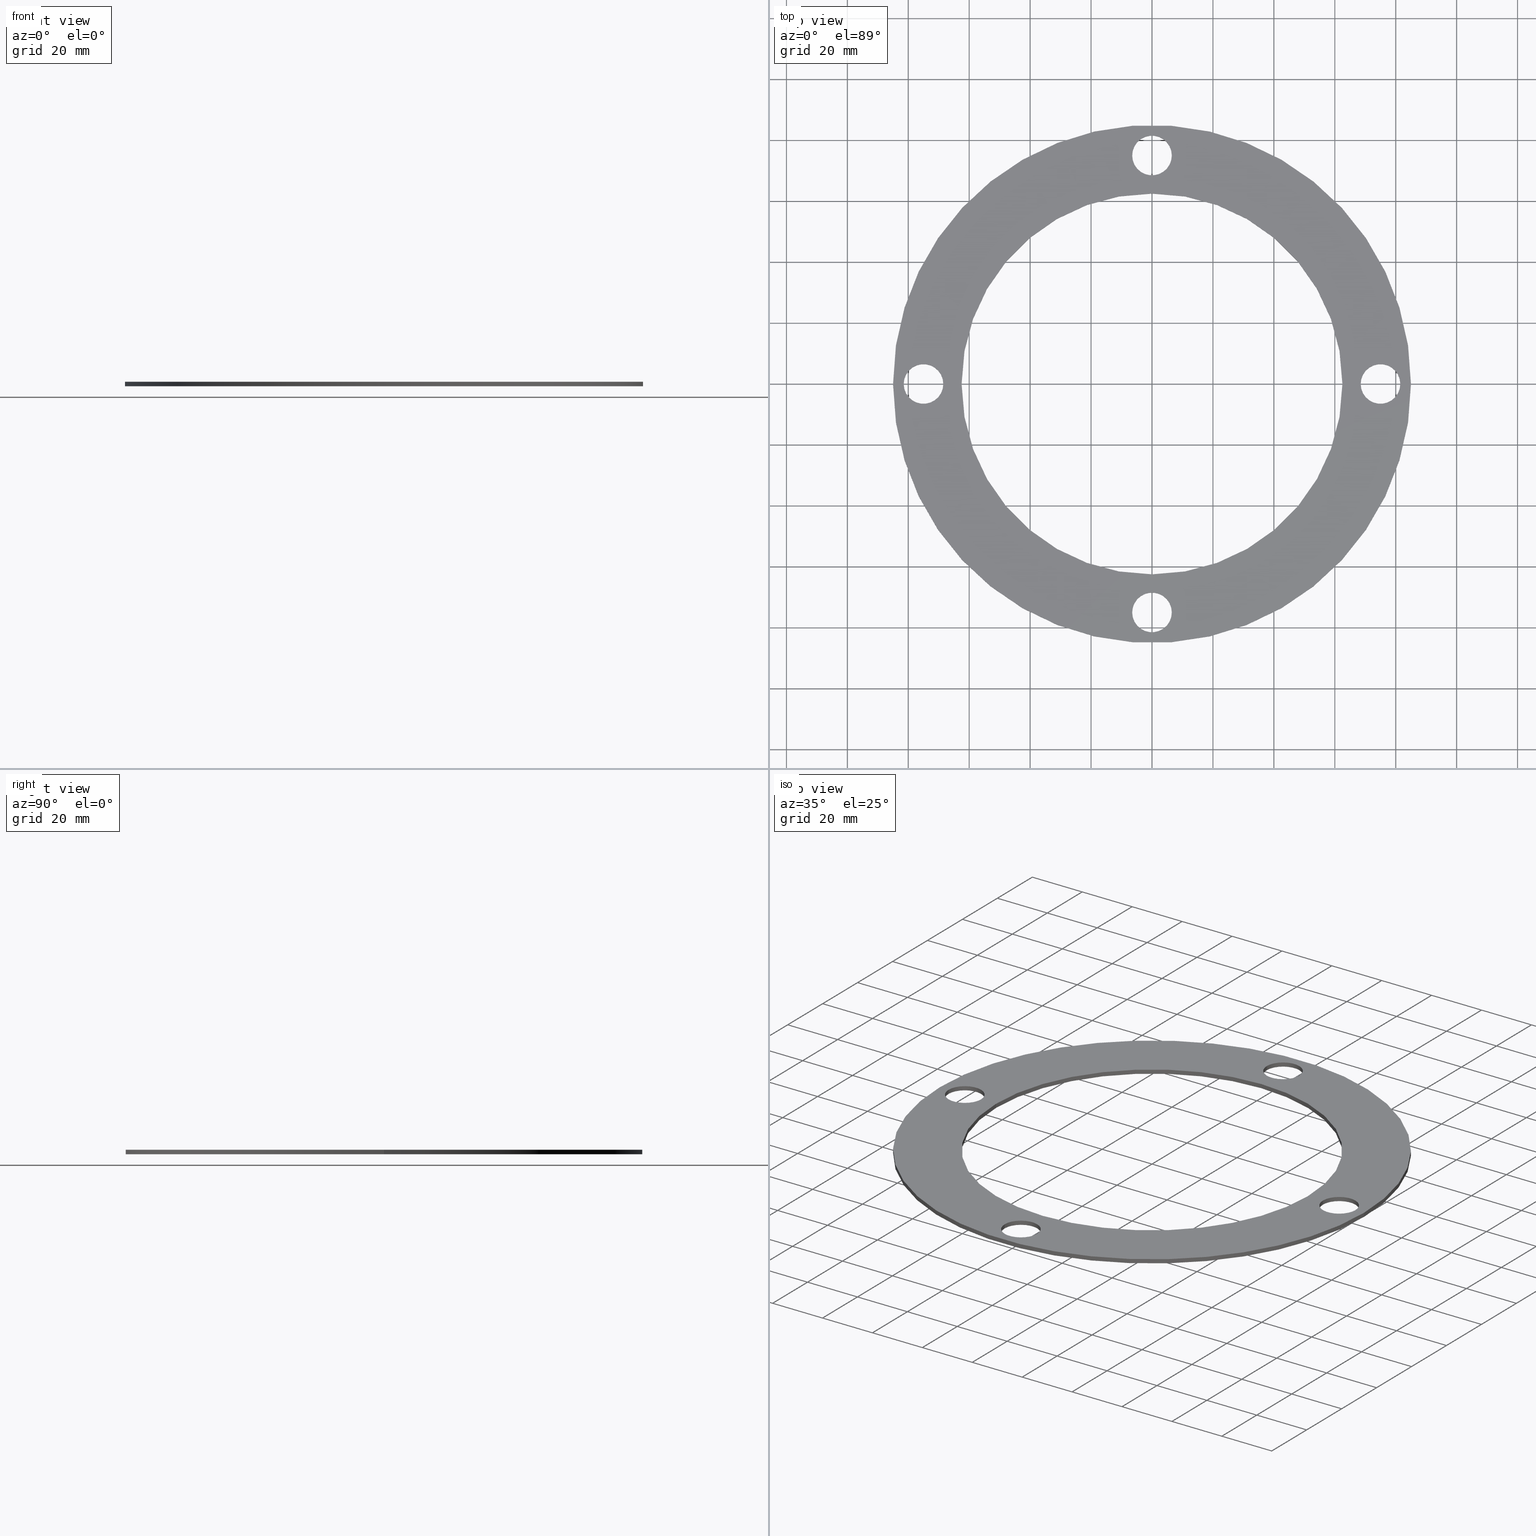
[diagram: canonical four-view strip — front | top / right | iso, engineering-drawing reading convention]
A machine part, canonical four-view strip (front | top / right | iso — engineering-drawing reading convention). The complete STEP part file that produces these views, byte-faithful:
ISO-10303-21;
HEADER;
FILE_DESCRIPTION (( 'STEP AP203' ),
    '1' );
FILE_NAME ('3996-60-30_REV_.step',
    '2026-02-21T22:20:02',
    ( '' ),
    ( '' ),
    'SwSTEP 2.0',
    'SolidWorks 2025',
    '' );
FILE_SCHEMA (( 'CONFIG_CONTROL_DESIGN' ));
ENDSEC;

DATA;
#1 = DIRECTION ( 'NONE',  ( 8.517425179052550560E-32, -6.044410759837815523E-32, 1.000000000000000000 ) ) ;
#2 = PERSON_AND_ORGANIZATION ( #96, #293 ) ;
#3 = EDGE_CURVE ( 'NONE', #453, #89, #226, .T. ) ;
#4 = LINE ( 'NONE', #297, #269 ) ;
#5 = PERSON_AND_ORGANIZATION_ROLE ( 'classification_officer' ) ;
#6 = ORIENTED_EDGE ( 'NONE', *, *, #10, .T. ) ;
#7 = DIRECTION ( 'NONE',  ( 8.517425179052550560E-32, -6.044410759837815523E-32, 1.000000000000000000 ) ) ;
#8 = SHAPE_DEFINITION_REPRESENTATION ( #276, #530 ) ;
#9 = DIRECTION ( 'NONE',  ( 8.517425179052550560E-32, -6.044410759837815523E-32, 1.000000000000000000 ) ) ;
#10 = EDGE_CURVE ( 'NONE', #313, #408, #533, .T. ) ;
#11 = ORIENTED_EDGE ( 'NONE', *, *, #148, .T. ) ;
#12 = CARTESIAN_POINT ( 'NONE',  ( 62.50000000000000000, 7.654042494671106110E-15, -5.323390736907844100E-30 ) ) ;
#13 = EDGE_CURVE ( 'NONE', #377, #356, #36, .T. ) ;
#14 = ORIENTED_EDGE ( 'NONE', *, *, #296, .F. ) ;
#15 = CARTESIAN_POINT ( 'NONE',  ( -84.99999999999998579, 1.479114197289397135E-28, 1.499999999999945821 ) ) ;
#16 = ORIENTED_EDGE ( 'NONE', *, *, #333, .F. ) ;
#17 = DIRECTION ( 'NONE',  ( 1.000000000000000000, 0.000000000000000000, 7.525872184246931317E-32 ) ) ;
#18 = ORIENTED_EDGE ( 'NONE', *, *, #314, .T. ) ;
#19 = PRODUCT_DEFINITION_FORMATION_WITH_SPECIFIED_SOURCE ( 'ANY', '', #288, .NOT_KNOWN. ) ;
#20 = EDGE_CURVE ( 'NONE', #316, #528, #194, .T. ) ;
#21 = CARTESIAN_POINT ( 'NONE',  ( 75.00000000000008527, 7.830047451731110384E-13, 0.000000000000000000 ) ) ;
#22 = ORIENTED_EDGE ( 'NONE', *, *, #336, .F. ) ;
#23 = CARTESIAN_POINT ( 'NONE',  ( -6.873544910604757304E-15, 75.00000000000000000, 0.000000000000000000 ) ) ;
#24 = DIRECTION ( 'NONE',  ( 1.000000000000000000, 0.000000000000000000, 0.000000000000000000 ) ) ;
#25 = APPROVAL_DATE_TIME ( #199, #208 ) ;
#26 = CIRCLE ( 'NONE', #99, 6.500000000000005329 ) ;
#27 = VECTOR ( 'NONE', #145, 1000.000000000000000 ) ;
#28 = CARTESIAN_POINT ( 'NONE',  ( -75.00000000000007105, -2.786460221246949539E-13, 0.000000000000000000 ) ) ;
#29 = DIRECTION ( 'NONE',  ( -1.000000000000000000, 0.000000000000000000, 0.000000000000000000 ) ) ;
#30 = APPROVAL ( #115, 'UNSPECIFIED' ) ;
#31 = EDGE_LOOP ( 'NONE', ( #98, #6, #509, #323 ) ) ;
#32 = CARTESIAN_POINT ( 'NONE',  ( -68.50000000000005684, -2.786460221246949539E-13, -5.536326366384160492E-31 ) ) ;
#33 = EDGE_CURVE ( 'NONE', #366, #392, #214, .T. ) ;
#34 = DIRECTION ( 'NONE',  ( 8.517425179052550560E-32, -6.044410759837815523E-32, 1.000000000000000000 ) ) ;
#35 = MECHANICAL_CONTEXT ( 'NONE', #71, 'mechanical' ) ;
#36 = CIRCLE ( 'NONE', #184, 62.50000000000000000 ) ;
#37 = AXIS2_PLACEMENT_3D ( 'NONE', #368, #417, #74 ) ;
#38 = ADVANCED_FACE ( 'NONE', ( #339 ), #251, .F. ) ;
#39 = CC_DESIGN_SECURITY_CLASSIFICATION ( #463, ( #19 ) ) ;
#40 = DIRECTION ( 'NONE',  ( 8.517425179052550560E-32, -6.044410759837815523E-32, 1.000000000000000000 ) ) ;
#41 = CARTESIAN_POINT ( 'NONE',  ( -1.972152263052529514E-28, 1.479114197289397135E-28, 1.499999999999945821 ) ) ;
#42 = CARTESIAN_POINT ( 'NONE',  ( 6.499999999999996447, 75.00000000000000000, 4.891816919760509243E-31 ) ) ;
#43 = ORIENTED_EDGE ( 'NONE', *, *, #3, .T. ) ;
#44 = DIRECTION ( 'NONE',  ( -1.000000000000000000, 0.000000000000000000, 0.000000000000000000 ) ) ;
#45 = ORIENTED_EDGE ( 'NONE', *, *, #342, .T. ) ;
#46 = AXIS2_PLACEMENT_3D ( 'NONE', #23, #331, #80 ) ;
#47 = AXIS2_PLACEMENT_3D ( 'NONE', #344, #502, #29 ) ;
#48 = LINE ( 'NONE', #129, #280 ) ;
#49 = ORIENTED_EDGE ( 'NONE', *, *, #123, .T. ) ;
#50 = CARTESIAN_POINT ( 'NONE',  ( -81.50000000000008527, -2.778500017052491628E-13, 1.499999999999945821 ) ) ;
#51 = EDGE_CURVE ( 'NONE', #481, #309, #484, .T. ) ;
#52 = DIRECTION ( 'NONE',  ( -8.517425179052550560E-32, 6.044410759837815523E-32, -1.000000000000000000 ) ) ;
#53 = EDGE_LOOP ( 'NONE', ( #171, #222, #139, #11 ) ) ;
#54 = AXIS2_PLACEMENT_3D ( 'NONE', #200, #116, #537 ) ;
#55 = CARTESIAN_POINT ( 'NONE',  ( -75.00000000000007105, -2.786460221246949539E-13, 0.000000000000000000 ) ) ;
#56 = LOCAL_TIME ( 9, 20, 2.000000000000000000, #508 ) ;
#57 = ORIENTED_EDGE ( 'NONE', *, *, #64, .F. ) ;
#58 = CARTESIAN_POINT ( 'NONE',  ( -62.50000000000000000, 1.479567528096384971E-28, 5.323390736907844100E-30 ) ) ;
#59 = ORIENTED_EDGE ( 'NONE', *, *, #113, .F. ) ;
#60 = CARTESIAN_POINT ( 'NONE',  ( -1.972152263052529514E-28, 1.479114197289397135E-28, 1.499999999999945821 ) ) ;
#61 = DIRECTION ( 'NONE',  ( -8.517425179052550560E-32, 6.044410759837815523E-32, -1.000000000000000000 ) ) ;
#62 = EDGE_LOOP ( 'NONE', ( #397, #492 ) ) ;
#63 = FACE_BOUND ( 'NONE', #62, .T. ) ;
#64 = EDGE_CURVE ( 'NONE', #207, #523, #524, .T. ) ;
#65 = LINE ( 'NONE', #396, #412 ) ;
#66 = ORIENTED_EDGE ( 'NONE', *, *, #219, .F. ) ;
#67 = DIRECTION ( 'NONE',  ( -7.525872184246934601E-32, -6.044410759837815523E-32, 1.000000000000000000 ) ) ;
#68 = CIRCLE ( 'NONE', #504, 6.500000000000003553 ) ;
#69 = CIRCLE ( 'NONE', #186, 6.500000000000003553 ) ;
#70 = DIRECTION ( 'NONE',  ( -1.000000000000000000, 0.000000000000000000, 0.000000000000000000 ) ) ;
#71 = APPLICATION_CONTEXT ( 'configuration controlled 3d designs of mechanical parts and assemblies' ) ;
#72 = DIRECTION ( 'NONE',  ( 1.067522139062649646E-14, -1.000000000000000000, 0.000000000000000000 ) ) ;
#73 =( LENGTH_UNIT ( ) NAMED_UNIT ( * ) SI_UNIT ( .MILLI., .METRE. ) );
#74 = DIRECTION ( 'NONE',  ( -1.000000000000000000, 0.000000000000000000, -7.525872184246933507E-32 ) ) ;
#75 = APPROVAL_STATUS ( 'not_yet_approved' ) ;
#76 = AXIS2_PLACEMENT_3D ( 'NONE', #451, #247, #70 ) ;
#77 = CIRCLE ( 'NONE', #341, 6.500000000000005329 ) ;
#78 = ORIENTED_EDGE ( 'NONE', *, *, #376, .T. ) ;
#79 = CALENDAR_DATE ( 2026, 22, 2 ) ;
#80 = DIRECTION ( 'NONE',  ( 1.000000000000000000, 0.000000000000000000, 7.525872184246933507E-32 ) ) ;
#81 = FACE_OUTER_BOUND ( 'NONE', #242, .T. ) ;
#82 = LINE ( 'NONE', #346, #439 ) ;
#83 = CYLINDRICAL_SURFACE ( 'NONE', #499, 62.50000000000000000 ) ;
#84 =( GEOMETRIC_REPRESENTATION_CONTEXT ( 3 ) GLOBAL_UNCERTAINTY_ASSIGNED_CONTEXT ( ( #521 ) ) GLOBAL_UNIT_ASSIGNED_CONTEXT ( ( #73, #375, #244 ) ) REPRESENTATION_CONTEXT ( 'NONE', 'WORKASPACE' ) );
#85 = DIRECTION ( 'NONE',  ( -8.517425179052550560E-32, 6.044410759837815523E-32, -1.000000000000000000 ) ) ;
#86 = ORIENTED_EDGE ( 'NONE', *, *, #526, .F. ) ;
#87 = EDGE_CURVE ( 'NONE', #408, #423, #160, .T. ) ;
#88 = DIRECTION ( 'NONE',  ( 8.517425179052550560E-32, -6.044410759837815523E-32, 1.000000000000000000 ) ) ;
#89 = VERTEX_POINT ( 'NONE', #201 ) ;
#90 = CARTESIAN_POINT ( 'NONE',  ( -68.50000000000007105, -2.786460221246949539E-13, 1.499999999999945821 ) ) ;
#91 = AXIS2_PLACEMENT_3D ( 'NONE', #403, #185, #363 ) ;
#92 = DIRECTION ( 'NONE',  ( -4.270088556250598741E-15, 1.000000000000000000, 0.000000000000000000 ) ) ;
#93 = EDGE_LOOP ( 'NONE', ( #493, #516 ) ) ;
#94 = DIRECTION ( 'NONE',  ( -1.000000000000000000, 0.000000000000000000, 0.000000000000000000 ) ) ;
#95 = ORIENTED_EDGE ( 'NONE', *, *, #285, .F. ) ;
#96 = PERSON ( 'UNSPECIFIED', 'UNSPECIFIED', 'UNSPECIFIED', ('UNSPECIFIED'), ('UNSPECIFIED'), ('UNSPECIFIED') ) ;
#97 = CYLINDRICAL_SURFACE ( 'NONE', #248, 6.500000000000005329 ) ;
#98 = ORIENTED_EDGE ( 'NONE', *, *, #166, .F. ) ;
#99 = AXIS2_PLACEMENT_3D ( 'NONE', #382, #1, #431 ) ;
#100 = FACE_BOUND ( 'NONE', #395, .T. ) ;
#101 = ORIENTED_EDGE ( 'NONE', *, *, #388, .T. ) ;
#102 = CARTESIAN_POINT ( 'NONE',  ( -1.972152263052529514E-28, 1.479114197289397135E-28, 1.499999999999945821 ) ) ;
#103 = ORIENTED_EDGE ( 'NONE', *, *, #219, .T. ) ;
#104 = FACE_OUTER_BOUND ( 'NONE', #471, .T. ) ;
#105 = DIRECTION ( 'NONE',  ( 8.517425179052550560E-32, -6.044410759837815523E-32, 1.000000000000000000 ) ) ;
#106 = ORIENTED_EDGE ( 'NONE', *, *, #342, .F. ) ;
#107 = CIRCLE ( 'NONE', #347, 62.50000000000000000 ) ;
#108 = EDGE_LOOP ( 'NONE', ( #131, #491 ) ) ;
#109 = VECTOR ( 'NONE', #85, 1000.000000000000000 ) ;
#110 = EDGE_CURVE ( 'NONE', #356, #377, #107, .T. ) ;
#111 = EDGE_LOOP ( 'NONE', ( #103, #282 ) ) ;
#112 = DATE_TIME_ROLE ( 'creation_date' ) ;
#113 = EDGE_CURVE ( 'NONE', #366, #177, #540, .T. ) ;
#114 = CARTESIAN_POINT ( 'NONE',  ( 6.534899330247067952E-17, -75.00000000000011369, 0.000000000000000000 ) ) ;
#115 = APPROVAL_STATUS ( 'not_yet_approved' ) ;
#116 = DIRECTION ( 'NONE',  ( 8.517425179052550560E-32, -6.044410759837815523E-32, 1.000000000000000000 ) ) ;
#117 = FACE_OUTER_BOUND ( 'NONE', #53, .T. ) ;
#118 = AXIS2_PLACEMENT_3D ( 'NONE', #259, #467, #511 ) ;
#119 = ORIENTED_EDGE ( 'NONE', *, *, #157, .T. ) ;
#120 = CARTESIAN_POINT ( 'NONE',  ( -1.972152263052529514E-28, 1.479114197289397135E-28, 1.499999999999945821 ) ) ;
#121 = CARTESIAN_POINT ( 'NONE',  ( 75.00000000000008527, 7.830047451731110384E-13, 0.000000000000000000 ) ) ;
#122 = AXIS2_PLACEMENT_3D ( 'NONE', #220, #173, #216 ) ;
#123 = EDGE_CURVE ( 'NONE', #523, #207, #245, .T. ) ;
#124 = VECTOR ( 'NONE', #443, 1000.000000000000000 ) ;
#125 = DIRECTION ( 'NONE',  ( 1.000000000000000000, 0.000000000000000000, 7.525872184246935696E-32 ) ) ;
#126 = DIRECTION ( 'NONE',  ( 8.517425179052550560E-32, -6.044410759837815523E-32, 1.000000000000000000 ) ) ;
#127 = APPROVAL_DATE_TIME ( #416, #30 ) ;
#128 = EDGE_LOOP ( 'NONE', ( #137, #43 ) ) ;
#129 = CARTESIAN_POINT ( 'NONE',  ( -6.500000000000009770, 75.00000000000000000, -4.891816919760509243E-31 ) ) ;
#130 = ADVANCED_FACE ( 'NONE', ( #455 ), #497, .T. ) ;
#131 = ORIENTED_EDGE ( 'NONE', *, *, #246, .F. ) ;
#132 = VECTOR ( 'NONE', #427, 1000.000000000000000 ) ;
#133 = APPROVAL_PERSON_ORGANIZATION ( #473, #299, #432 ) ;
#134 = CARTESIAN_POINT ( 'NONE',  ( 62.50000000000000000, 7.654042494671106110E-15, 1.499999999999945821 ) ) ;
#135 = ORIENTED_EDGE ( 'NONE', *, *, #466, .F. ) ;
#136 = DIRECTION ( 'NONE',  ( -8.517425179052550560E-32, 6.044410759837815523E-32, -1.000000000000000000 ) ) ;
#137 = ORIENTED_EDGE ( 'NONE', *, *, #466, .T. ) ;
#138 = FACE_OUTER_BOUND ( 'NONE', #352, .T. ) ;
#139 = ORIENTED_EDGE ( 'NONE', *, *, #381, .T. ) ;
#140 = FACE_BOUND ( 'NONE', #93, .T. ) ;
#141 = EDGE_CURVE ( 'NONE', #326, #319, #238, .T. ) ;
#142 = CIRCLE ( 'NONE', #290, 84.99999999999998579 ) ;
#143 = DIRECTION ( 'NONE',  ( 1.000000000000000000, 0.000000000000000000, 0.000000000000000000 ) ) ;
#144 = ORIENTED_EDGE ( 'NONE', *, *, #421, .T. ) ;
#145 = DIRECTION ( 'NONE',  ( 8.517425179052550560E-32, -6.044410759837815523E-32, 1.000000000000000000 ) ) ;
#146 = EDGE_LOOP ( 'NONE', ( #149, #18, #272, #429 ) ) ;
#147 = FACE_BOUND ( 'NONE', #108, .T. ) ;
#148 = EDGE_CURVE ( 'NONE', #309, #481, #68, .T. ) ;
#149 = ORIENTED_EDGE ( 'NONE', *, *, #20, .F. ) ;
#150 = CLOSED_SHELL ( 'NONE', ( #367, #38, #441, #304, #535, #130, #510, #517, #520, #406, #398, #457, #539, #475 ) ) ;
#151 = ORIENTED_EDGE ( 'NONE', *, *, #113, .T. ) ;
#152 = CC_DESIGN_PERSON_AND_ORGANIZATION_ASSIGNMENT ( #468, #221, ( #19 ) ) ;
#153 = DIRECTION ( 'NONE',  ( 8.517425179052550560E-32, -6.044410759837815523E-32, 1.000000000000000000 ) ) ;
#154 = PERSON_AND_ORGANIZATION ( #96, #293 ) ;
#155 = VERTEX_POINT ( 'NONE', #380 ) ;
#156 = DIRECTION ( 'NONE',  ( 8.517425179052550560E-32, -6.044410759837815523E-32, 1.000000000000000000 ) ) ;
#157 = EDGE_CURVE ( 'NONE', #453, #446, #472, .T. ) ;
#158 = CARTESIAN_POINT ( 'NONE',  ( 75.00000000000004263, 7.760658512692038100E-13, 1.500000000000056843 ) ) ;
#159 = PERSON_AND_ORGANIZATION_ROLE ( 'design_owner' ) ;
#160 = CIRCLE ( 'NONE', #474, 6.500000000000005329 ) ;
#161 = CIRCLE ( 'NONE', #197, 6.500000000000003553 ) ;
#162 = CARTESIAN_POINT ( 'NONE',  ( 6.534899330247067952E-17, -75.00000000000011369, 0.000000000000000000 ) ) ;
#163 = DIRECTION ( 'NONE',  ( 0.000000000000000000, 0.000000000000000000, 1.000000000000000000 ) ) ;
#164 = CARTESIAN_POINT ( 'NONE',  ( -6.873544910604757304E-15, 75.00000000000000000, 0.000000000000000000 ) ) ;
#165 = DIRECTION ( 'NONE',  ( 1.000000000000000000, 0.000000000000000000, 7.525872184246935696E-32 ) ) ;
#166 = EDGE_CURVE ( 'NONE', #313, #435, #462, .T. ) ;
#167 = AXIS2_PLACEMENT_3D ( 'NONE', #190, #9, #273 ) ;
#168 = DIRECTION ( 'NONE',  ( 8.517425179052550560E-32, -6.044410759837815523E-32, 1.000000000000000000 ) ) ;
#169 = ORIENTED_EDGE ( 'NONE', *, *, #490, .F. ) ;
#170 = DIRECTION ( 'NONE',  ( 8.517425179052550560E-32, -6.044410759837815523E-32, 1.000000000000000000 ) ) ;
#171 = ORIENTED_EDGE ( 'NONE', *, *, #388, .F. ) ;
#172 = CC_DESIGN_DATE_AND_TIME_ASSIGNMENT ( #512, #543, ( #463 ) ) ;
#173 = DIRECTION ( 'NONE',  ( 8.517425179052550560E-32, -6.044410759837815523E-32, 1.000000000000000000 ) ) ;
#174 = APPROVAL_DATE_TIME ( #217, #299 ) ;
#175 = CIRCLE ( 'NONE', #167, 84.99999999999998579 ) ;
#176 = FACE_OUTER_BOUND ( 'NONE', #234, .T. ) ;
#177 = VERTEX_POINT ( 'NONE', #253 ) ;
#178 = CARTESIAN_POINT ( 'NONE',  ( -75.00000000000007105, -2.786460221246949539E-13, 0.000000000000000000 ) ) ;
#179 = ORIENTED_EDGE ( 'NONE', *, *, #448, .T. ) ;
#180 = EDGE_CURVE ( 'NONE', #528, #319, #265, .T. ) ;
#181 = CARTESIAN_POINT ( 'NONE',  ( -6.873544910604757304E-15, 75.00000000000000000, 0.000000000000000000 ) ) ;
#182 = EDGE_LOOP ( 'NONE', ( #262, #86 ) ) ;
#183 = PLANE ( 'NONE',  #385 ) ;
#184 = AXIS2_PLACEMENT_3D ( 'NONE', #120, #153, #24 ) ;
#185 = DIRECTION ( 'NONE',  ( 8.517425179052550560E-32, -6.044410759837815523E-32, 1.000000000000000000 ) ) ;
#186 = AXIS2_PLACEMENT_3D ( 'NONE', #498, #156, #340 ) ;
#187 = ORIENTED_EDGE ( 'NONE', *, *, #526, .T. ) ;
#188 = CARTESIAN_POINT ( 'NONE',  ( 0.000000000000000000, 0.000000000000000000, 0.000000000000000000 ) ) ;
#189 = EDGE_CURVE ( 'NONE', #446, #155, #449, .T. ) ;
#190 = CARTESIAN_POINT ( 'NONE',  ( -1.972152263052529514E-28, 1.479114197289397135E-28, 1.499999999999945821 ) ) ;
#191 = ORIENTED_EDGE ( 'NONE', *, *, #314, .F. ) ;
#192 = FACE_OUTER_BOUND ( 'NONE', #249, .T. ) ;
#193 = CARTESIAN_POINT ( 'NONE',  ( 68.50000000000007105, 7.838007655925567790E-13, -4.891816919760509243E-31 ) ) ;
#194 = CIRCLE ( 'NONE', #310, 6.500000000000005329 ) ;
#195 = ORIENTED_EDGE ( 'NONE', *, *, #430, .F. ) ;
#196 = APPROVAL_ROLE ( '' ) ;
#197 = AXIS2_PLACEMENT_3D ( 'NONE', #440, #394, #489 ) ;
#198 = DIRECTION ( 'NONE',  ( 1.000000000000000000, 0.000000000000000000, 7.525872184246933507E-32 ) ) ;
#199 = DATE_AND_TIME ( #292, #264 ) ;
#200 = CARTESIAN_POINT ( 'NONE',  ( -1.972152263052529514E-28, 1.479114197289397135E-28, 1.499999999999945821 ) ) ;
#201 = CARTESIAN_POINT ( 'NONE',  ( -84.99999999999998579, 1.479567528096384971E-28, 1.499999999999945821 ) ) ;
#202 = PERSON_AND_ORGANIZATION_ROLE ( 'creator' ) ;
#203 = AXIS2_PLACEMENT_3D ( 'NONE', #505, #212, #125 ) ;
#204 = LOCAL_TIME ( 9, 20, 2.000000000000000000, #306 ) ;
#205 = CARTESIAN_POINT ( 'NONE',  ( -6.500000000000016875, 75.00000000000000000, 1.500000000000056843 ) ) ;
#206 = COORDINATED_UNIVERSAL_TIME_OFFSET ( 10, 0, .AHEAD. ) ;
#207 = VERTEX_POINT ( 'NONE', #503 ) ;
#208 = APPROVAL ( #75, 'UNSPECIFIED' ) ;
#209 = FACE_OUTER_BOUND ( 'NONE', #146, .T. ) ;
#210 = APPROVAL_STATUS ( 'not_yet_approved' ) ;
#211 = ORIENTED_EDGE ( 'NONE', *, *, #381, .F. ) ;
#212 = DIRECTION ( 'NONE',  ( 8.517425179052550560E-32, -6.044410759837815523E-32, 1.000000000000000000 ) ) ;
#213 = EDGE_LOOP ( 'NONE', ( #529, #119, #426, #360 ) ) ;
#214 = CIRCLE ( 'NONE', #46, 6.500000000000003553 ) ;
#215 = AXIS2_PLACEMENT_3D ( 'NONE', #365, #105, #143 ) ;
#216 = DIRECTION ( 'NONE',  ( 1.000000000000000000, 0.000000000000000000, 7.525872184246934601E-32 ) ) ;
#217 = DATE_AND_TIME ( #260, #204 ) ;
#218 = ORIENTED_EDGE ( 'NONE', *, *, #51, .T. ) ;
#219 = EDGE_CURVE ( 'NONE', #435, #313, #514, .T. ) ;
#220 = CARTESIAN_POINT ( 'NONE',  ( 0.000000000000000000, 0.000000000000000000, 0.000000000000000000 ) ) ;
#221 = PERSON_AND_ORGANIZATION_ROLE ( 'creator' ) ;
#222 = ORIENTED_EDGE ( 'NONE', *, *, #123, .F. ) ;
#223 = DIRECTION ( 'NONE',  ( 1.000000000000000000, 0.000000000000000000, 7.525872184246931317E-32 ) ) ;
#224 = CALENDAR_DATE ( 2026, 22, 2 ) ;
#225 = ORIENTED_EDGE ( 'NONE', *, *, #20, .T. ) ;
#226 = CIRCLE ( 'NONE', #54, 84.99999999999998579 ) ;
#227 = DIRECTION ( 'NONE',  ( 8.517425179052550560E-32, -6.044410759837815523E-32, 1.000000000000000000 ) ) ;
#228 = EDGE_LOOP ( 'NONE', ( #519, #258 ) ) ;
#229 = CARTESIAN_POINT ( 'NONE',  ( 84.99999999999998579, 1.040949779275264852E-14, -7.239811402194665174E-30 ) ) ;
#230 = CC_DESIGN_PERSON_AND_ORGANIZATION_ASSIGNMENT ( #371, #202, ( #424 ) ) ;
#231 = VERTEX_POINT ( 'NONE', #205 ) ;
#232 = DIRECTION ( 'NONE',  ( 1.000000000000000000, 0.000000000000000000, 7.525872184246934601E-32 ) ) ;
#233 = DIRECTION ( 'NONE',  ( 8.517425179052550560E-32, -6.044410759837815523E-32, 1.000000000000000000 ) ) ;
#234 = EDGE_LOOP ( 'NONE', ( #191, #169, #294, #374 ) ) ;
#235 = PLANE ( 'NONE',  #256 ) ;
#236 = MANIFOLD_SOLID_BREP ( 'CirPattern1', #150 ) ;
#237 = EDGE_CURVE ( 'NONE', #444, #479, #329, .T. ) ;
#238 = CIRCLE ( 'NONE', #456, 6.500000000000005329 ) ;
#239 = CARTESIAN_POINT ( 'NONE',  ( 81.50000000000008527, 7.830047451731110384E-13, -5.536326366384162243E-31 ) ) ;
#240 = AXIS2_PLACEMENT_3D ( 'NONE', #181, #359, #312 ) ;
#241 = ORIENTED_EDGE ( 'NONE', *, *, #10, .F. ) ;
#242 = EDGE_LOOP ( 'NONE', ( #500, #45, #442, #195 ) ) ;
#243 = ORIENTED_EDGE ( 'NONE', *, *, #33, .F. ) ;
#244 =( NAMED_UNIT ( * ) SI_UNIT ( $, .STERADIAN. ) SOLID_ANGLE_UNIT ( ) );
#245 = CIRCLE ( 'NONE', #321, 6.500000000000003553 ) ;
#246 = EDGE_CURVE ( 'NONE', #423, #408, #26, .T. ) ;
#247 = DIRECTION ( 'NONE',  ( -8.517425179052550560E-32, 6.044410759837815523E-32, -1.000000000000000000 ) ) ;
#248 = AXIS2_PLACEMENT_3D ( 'NONE', #55, #227, #17 ) ;
#249 = EDGE_LOOP ( 'NONE', ( #465, #135, #179, #437 ) ) ;
#250 = COORDINATED_UNIVERSAL_TIME_OFFSET ( 10, 0, .AHEAD. ) ;
#251 = CYLINDRICAL_SURFACE ( 'NONE', #263, 6.500000000000003553 ) ;
#252 = DIRECTION ( 'NONE',  ( -8.517425179052550560E-32, 6.044410759837815523E-32, -1.000000000000000000 ) ) ;
#253 = CARTESIAN_POINT ( 'NONE',  ( 6.499999999999989342, 75.00000000000000000, 1.500000000000056843 ) ) ;
#254 = PERSON_AND_ORGANIZATION ( #96, #293 ) ;
#255 = AXIS2_PLACEMENT_3D ( 'NONE', #300, #40, #302 ) ;
#256 = AXIS2_PLACEMENT_3D ( 'NONE', #188, #67, #405 ) ;
#257 = CARTESIAN_POINT ( 'NONE',  ( -68.50000000000005684, -2.786460221246949539E-13, 4.891816919760509243E-31 ) ) ;
#258 = ORIENTED_EDGE ( 'NONE', *, *, #13, .F. ) ;
#259 = CARTESIAN_POINT ( 'NONE',  ( -75.00000000000008527, -2.855849160286021823E-13, 1.499999999999945821 ) ) ;
#260 = CALENDAR_DATE ( 2026, 22, 2 ) ;
#261 = DIRECTION ( 'NONE',  ( 8.517425179052550560E-32, -6.044410759837815523E-32, 1.000000000000000000 ) ) ;
#262 = ORIENTED_EDGE ( 'NONE', *, *, #376, .F. ) ;
#263 = AXIS2_PLACEMENT_3D ( 'NONE', #162, #415, #198 ) ;
#264 = LOCAL_TIME ( 9, 20, 2.000000000000000000, #534 ) ;
#265 = LINE ( 'NONE', #257, #384 ) ;
#266 = CYLINDRICAL_SURFACE ( 'NONE', #330, 6.500000000000005329 ) ;
#267 = CARTESIAN_POINT ( 'NONE',  ( 6.500000000000003553, -75.00000000000011369, 4.891816919760509243E-31 ) ) ;
#268 = ORIENTED_EDGE ( 'NONE', *, *, #285, .T. ) ;
#269 = VECTOR ( 'NONE', #170, 1000.000000000000000 ) ;
#270 = CC_DESIGN_PERSON_AND_ORGANIZATION_ASSIGNMENT ( #254, #159, ( #288 ) ) ;
#271 = CARTESIAN_POINT ( 'NONE',  ( -6.500000000000009770, 75.00000000000000000, 5.536326366384160492E-31 ) ) ;
#272 = ORIENTED_EDGE ( 'NONE', *, *, #141, .T. ) ;
#273 = DIRECTION ( 'NONE',  ( 1.000000000000000000, 0.000000000000000000, 0.000000000000000000 ) ) ;
#274 = ORIENTED_EDGE ( 'NONE', *, *, #421, .F. ) ;
#275 = FACE_BOUND ( 'NONE', #404, .T. ) ;
#276 = PRODUCT_DEFINITION_SHAPE ( 'NONE', 'NONE',  #424 ) ;
#277 = LINE ( 'NONE', #267, #124 ) ;
#278 = ORIENTED_EDGE ( 'NONE', *, *, #325, .T. ) ;
#279 = PRODUCT_RELATED_PRODUCT_CATEGORY ( 'detail', '', ( #288 ) ) ;
#280 = VECTOR ( 'NONE', #386, 1000.000000000000000 ) ;
#281 = CC_DESIGN_APPROVAL ( #299, ( #463 ) ) ;
#282 = ORIENTED_EDGE ( 'NONE', *, *, #166, .T. ) ;
#283 = CARTESIAN_POINT ( 'NONE',  ( -2.075133271841921406E-14, -75.00000000000014211, 1.499999999999945821 ) ) ;
#284 = DIRECTION ( 'NONE',  ( 1.000000000000000000, 0.000000000000000000, 7.525872184246933507E-32 ) ) ;
#285 = EDGE_CURVE ( 'NONE', #392, #231, #48, .T. ) ;
#286 = DIRECTION ( 'NONE',  ( -1.000000000000000000, 0.000000000000000000, -7.525872184246933507E-32 ) ) ;
#287 = CALENDAR_DATE ( 2026, 22, 2 ) ;
#288 = PRODUCT ( '3996-60-30_REV_', '3996-60-30_REV_', '', ( #35 ) ) ;
#289 = DESIGN_CONTEXT ( 'detailed design', #407, 'design' ) ;
#290 = AXIS2_PLACEMENT_3D ( 'NONE', #544, #425, #165 ) ;
#291 = DIRECTION ( 'NONE',  ( 8.517425179052550560E-32, -6.044410759837815523E-32, 1.000000000000000000 ) ) ;
#292 = CALENDAR_DATE ( 2026, 22, 2 ) ;
#293 = ORGANIZATION ( 'UNSPECIFIED', 'UNSPECIFIED', '' ) ;
#294 = ORIENTED_EDGE ( 'NONE', *, *, #180, .T. ) ;
#295 = DIRECTION ( 'NONE',  ( 1.000000000000000000, 0.000000000000000000, 0.000000000000000000 ) ) ;
#296 = EDGE_CURVE ( 'NONE', #155, #446, #142, .T. ) ;
#297 = CARTESIAN_POINT ( 'NONE',  ( -81.50000000000007105, -2.778500017052491628E-13, -4.891816919760509243E-31 ) ) ;
#298 = CARTESIAN_POINT ( 'NONE',  ( 6.500000000000003553, -75.00000000000011369, -5.536326366384160492E-31 ) ) ;
#299 = APPROVAL ( #210, 'UNSPECIFIED' ) ;
#300 = CARTESIAN_POINT ( 'NONE',  ( 75.00000000000008527, 7.830047451731110384E-13, 0.000000000000000000 ) ) ;
#301 = CC_DESIGN_APPROVAL ( #30, ( #19 ) ) ;
#302 = DIRECTION ( 'NONE',  ( 1.067522139062649646E-14, -1.000000000000000000, 9.959465224912491216E-32 ) ) ;
#303 = ORIENTED_EDGE ( 'NONE', *, *, #141, .F. ) ;
#304 = ADVANCED_FACE ( 'NONE', ( #507 ), #305, .F. ) ;
#305 = CYLINDRICAL_SURFACE ( 'NONE', #476, 6.500000000000003553 ) ;
#306 = COORDINATED_UNIVERSAL_TIME_OFFSET ( 10, 0, .AHEAD. ) ;
#307 = CARTESIAN_POINT ( 'NONE',  ( 68.50000000000007105, 7.838007655925567790E-13, 5.536326366384161367E-31 ) ) ;
#308 = PERSON_AND_ORGANIZATION_ROLE ( 'design_supplier' ) ;
#309 = VERTEX_POINT ( 'NONE', #464 ) ;
#310 = AXIS2_PLACEMENT_3D ( 'NONE', #28, #334, #458 ) ;
#311 = CIRCLE ( 'NONE', #118, 6.500000000000005329 ) ;
#312 = DIRECTION ( 'NONE',  ( 1.000000000000000000, 0.000000000000000000, 7.525872184246933507E-32 ) ) ;
#313 = VERTEX_POINT ( 'NONE', #307 ) ;
#314 = EDGE_CURVE ( 'NONE', #316, #326, #4, .T. ) ;
#315 = CARTESIAN_POINT ( 'NONE',  ( -75.00000000000007105, -2.786460221246949539E-13, 0.000000000000000000 ) ) ;
#316 = VERTEX_POINT ( 'NONE', #470 ) ;
#317 = FACE_BOUND ( 'NONE', #228, .T. ) ;
#318 = CARTESIAN_POINT ( 'NONE',  ( -6.500000000000023093, -75.00000000000011369, 1.499999999999945821 ) ) ;
#319 = VERTEX_POINT ( 'NONE', #90 ) ;
#320 = FACE_BOUND ( 'NONE', #182, .T. ) ;
#321 = AXIS2_PLACEMENT_3D ( 'NONE', #114, #337, #286 ) ;
#322 = CARTESIAN_POINT ( 'NONE',  ( -6.500000000000003553, -75.00000000000011369, -4.891816919760509243E-31 ) ) ;
#323 = ORIENTED_EDGE ( 'NONE', *, *, #325, .F. ) ;
#324 = DIRECTION ( 'NONE',  ( 1.000000000000000000, 0.000000000000000000, 7.525872184246931317E-32 ) ) ;
#325 = EDGE_CURVE ( 'NONE', #435, #423, #82, .T. ) ;
#326 = VERTEX_POINT ( 'NONE', #50 ) ;
#327 = FACE_OUTER_BOUND ( 'NONE', #128, .T. ) ;
#328 = EDGE_LOOP ( 'NONE', ( #241, #66, #278, #433 ) ) ;
#329 = CIRCLE ( 'NONE', #122, 62.50000000000000000 ) ;
#330 = AXIS2_PLACEMENT_3D ( 'NONE', #315, #355, #324 ) ;
#331 = DIRECTION ( 'NONE',  ( 8.517425179052550560E-32, -6.044410759837815523E-32, 1.000000000000000000 ) ) ;
#332 = PERSON_AND_ORGANIZATION ( #96, #293 ) ;
#333 = EDGE_CURVE ( 'NONE', #319, #326, #311, .T. ) ;
#334 = DIRECTION ( 'NONE',  ( 8.517425179052550560E-32, -6.044410759837815523E-32, 1.000000000000000000 ) ) ;
#335 = APPLICATION_PROTOCOL_DEFINITION ( 'international standard', 'config_control_design', 1994, #71 ) ;
#336 = EDGE_CURVE ( 'NONE', #479, #444, #428, .T. ) ;
#337 = DIRECTION ( 'NONE',  ( 8.517425179052550560E-32, -6.044410759837815523E-32, 1.000000000000000000 ) ) ;
#338 = APPROVAL_ROLE ( '' ) ;
#339 = FACE_OUTER_BOUND ( 'NONE', #387, .T. ) ;
#340 = DIRECTION ( 'NONE',  ( 1.000000000000000000, 0.000000000000000000, 0.000000000000000000 ) ) ;
#341 = AXIS2_PLACEMENT_3D ( 'NONE', #178, #357, #518 ) ;
#342 = EDGE_CURVE ( 'NONE', #377, #479, #345, .T. ) ;
#343 = CARTESIAN_POINT ( 'NONE',  ( 6.499999999999996447, 75.00000000000000000, 4.891816919760509243E-31 ) ) ;
#344 = CARTESIAN_POINT ( 'NONE',  ( -1.972152263052529514E-28, 1.479114197289397135E-28, 1.499999999999945821 ) ) ;
#345 = LINE ( 'NONE', #379, #109 ) ;
#346 = CARTESIAN_POINT ( 'NONE',  ( 81.50000000000008527, 7.830047451731110384E-13, 4.891816919760509243E-31 ) ) ;
#347 = AXIS2_PLACEMENT_3D ( 'NONE', #409, #495, #536 ) ;
#348 = AXIS2_PLACEMENT_3D ( 'NONE', #102, #61, #94 ) ;
#349 = CARTESIAN_POINT ( 'NONE',  ( 84.99999999999998579, 1.040949779275264852E-14, 1.499999999999945821 ) ) ;
#350 = ORIENTED_EDGE ( 'NONE', *, *, #189, .F. ) ;
#351 = DIRECTION ( 'NONE',  ( 8.517425179052550560E-32, -6.044410759837815523E-32, 1.000000000000000000 ) ) ;
#352 = EDGE_LOOP ( 'NONE', ( #95, #243, #151, #78 ) ) ;
#353 = DIRECTION ( 'NONE',  ( 1.000000000000000000, 0.000000000000000000, 7.525872184246934601E-32 ) ) ;
#354 = LOCAL_TIME ( 9, 20, 2.000000000000000000, #206 ) ;
#355 = DIRECTION ( 'NONE',  ( 8.517425179052550560E-32, -6.044410759837815523E-32, 1.000000000000000000 ) ) ;
#356 = VERTEX_POINT ( 'NONE', #422 ) ;
#357 = DIRECTION ( 'NONE',  ( 8.517425179052550560E-32, -6.044410759837815523E-32, 1.000000000000000000 ) ) ;
#358 = EDGE_LOOP ( 'NONE', ( #274, #268, #187, #59 ) ) ;
#359 = DIRECTION ( 'NONE',  ( 8.517425179052550560E-32, -6.044410759837815523E-32, 1.000000000000000000 ) ) ;
#360 = ORIENTED_EDGE ( 'NONE', *, *, #448, .F. ) ;
#361 = FACE_BOUND ( 'NONE', #111, .T. ) ;
#362 = AXIS2_PLACEMENT_3D ( 'NONE', #496, #163, #295 ) ;
#363 = DIRECTION ( 'NONE',  ( 1.000000000000000000, 0.000000000000000000, 7.525872184246931317E-32 ) ) ;
#364 = EDGE_LOOP ( 'NONE', ( #106, #477, #459, #22 ) ) ;
#365 = CARTESIAN_POINT ( 'NONE',  ( -1.381243881451198568E-14, 75.00000000000000000, 1.500000000000056843 ) ) ;
#366 = VERTEX_POINT ( 'NONE', #42 ) ;
#367 = ADVANCED_FACE ( 'NONE', ( #209 ), #266, .F. ) ;
#368 = CARTESIAN_POINT ( 'NONE',  ( 6.534899330247067952E-17, -75.00000000000011369, 0.000000000000000000 ) ) ;
#369 = CIRCLE ( 'NONE', #215, 6.500000000000003553 ) ;
#370 = DIRECTION ( 'NONE',  ( -1.000000000000000000, 0.000000000000000000, 0.000000000000000000 ) ) ;
#371 = PERSON_AND_ORGANIZATION ( #96, #293 ) ;
#372 = DIRECTION ( 'NONE',  ( 8.517425179052550560E-32, -6.044410759837815523E-32, 1.000000000000000000 ) ) ;
#373 = DIRECTION ( 'NONE',  ( -1.000000000000000000, 0.000000000000000000, 0.000000000000000000 ) ) ;
#374 = ORIENTED_EDGE ( 'NONE', *, *, #333, .T. ) ;
#375 =( NAMED_UNIT ( * ) PLANE_ANGLE_UNIT ( ) SI_UNIT ( $, .RADIAN. ) );
#376 = EDGE_CURVE ( 'NONE', #177, #231, #369, .T. ) ;
#377 = VERTEX_POINT ( 'NONE', #134 ) ;
#378 = AXIS2_PLACEMENT_3D ( 'NONE', #21, #233, #223 ) ;
#379 = CARTESIAN_POINT ( 'NONE',  ( 62.50000000000000000, 7.654042494671106110E-15, 1.499999999999945821 ) ) ;
#380 = CARTESIAN_POINT ( 'NONE',  ( -84.99999999999998579, 1.479567528096384971E-28, 7.239811402194666575E-30 ) ) ;
#381 = EDGE_CURVE ( 'NONE', #523, #309, #277, .T. ) ;
#382 = CARTESIAN_POINT ( 'NONE',  ( 75.00000000000004263, 7.760658512692038100E-13, 1.500000000000056843 ) ) ;
#383 = SECURITY_CLASSIFICATION_LEVEL ( 'unclassified' ) ;
#384 = VECTOR ( 'NONE', #168, 1000.000000000000000 ) ;
#385 = AXIS2_PLACEMENT_3D ( 'NONE', #60, #447, #232 ) ;
#386 = DIRECTION ( 'NONE',  ( 8.517425179052550560E-32, -6.044410759837815523E-32, 1.000000000000000000 ) ) ;
#387 = EDGE_LOOP ( 'NONE', ( #57, #101, #218, #211 ) ) ;
#388 = EDGE_CURVE ( 'NONE', #207, #481, #399, .T. ) ;
#389 = CARTESIAN_POINT ( 'NONE',  ( 0.000000000000000000, 0.000000000000000000, 0.000000000000000000 ) ) ;
#390 = CC_DESIGN_PERSON_AND_ORGANIZATION_ASSIGNMENT ( #2, #5, ( #463 ) ) ;
#391 = CYLINDRICAL_SURFACE ( 'NONE', #91, 6.500000000000005329 ) ;
#392 = VERTEX_POINT ( 'NONE', #271 ) ;
#393 = APPROVAL_PERSON_ORGANIZATION ( #332, #208, #196 ) ;
#394 = DIRECTION ( 'NONE',  ( 8.517425179052550560E-32, -6.044410759837815523E-32, 1.000000000000000000 ) ) ;
#395 = EDGE_LOOP ( 'NONE', ( #16, #303 ) ) ;
#396 = CARTESIAN_POINT ( 'NONE',  ( -62.50000000000000000, 1.479114197289397135E-28, 1.499999999999945821 ) ) ;
#397 = ORIENTED_EDGE ( 'NONE', *, *, #237, .T. ) ;
#398 = ADVANCED_FACE ( 'NONE', ( #138 ), #486, .F. ) ;
#399 = LINE ( 'NONE', #322, #27 ) ;
#400 = EDGE_LOOP ( 'NONE', ( #49, #483 ) ) ;
#401 = FACE_BOUND ( 'NONE', #400, .T. ) ;
#402 = CC_DESIGN_APPROVAL ( #208, ( #424 ) ) ;
#403 = CARTESIAN_POINT ( 'NONE',  ( 75.00000000000008527, 7.830047451731110384E-13, 0.000000000000000000 ) ) ;
#404 = EDGE_LOOP ( 'NONE', ( #487, #225 ) ) ;
#405 = DIRECTION ( 'NONE',  ( 1.000000000000000000, 0.000000000000000000, 7.525872184246934601E-32 ) ) ;
#406 = ADVANCED_FACE ( 'NONE', ( #522 ), #478, .F. ) ;
#407 = APPLICATION_CONTEXT ( 'configuration controlled 3d designs of mechanical parts and assemblies' ) ;
#408 = VERTEX_POINT ( 'NONE', #527 ) ;
#409 = CARTESIAN_POINT ( 'NONE',  ( -1.972152263052529514E-28, 1.479114197289397135E-28, 1.499999999999945821 ) ) ;
#410 = APPLICATION_PROTOCOL_DEFINITION ( 'international standard', 'config_control_design', 1994, #407 ) ;
#411 = VECTOR ( 'NONE', #291, 1000.000000000000000 ) ;
#412 = VECTOR ( 'NONE', #52, 1000.000000000000000 ) ;
#413 = CARTESIAN_POINT ( 'NONE',  ( -75.00000000000008527, -2.855849160286021823E-13, 1.499999999999945821 ) ) ;
#414 = CYLINDRICAL_SURFACE ( 'NONE', #47, 84.99999999999998579 ) ;
#415 = DIRECTION ( 'NONE',  ( 8.517425179052550560E-32, -6.044410759837815523E-32, 1.000000000000000000 ) ) ;
#416 = DATE_AND_TIME ( #287, #532 ) ;
#417 = DIRECTION ( 'NONE',  ( 8.517425179052550560E-32, -6.044410759837815523E-32, 1.000000000000000000 ) ) ;
#418 = AXIS2_PLACEMENT_3D ( 'NONE', #121, #88, #542 ) ;
#419 = VECTOR ( 'NONE', #136, 1000.000000000000000 ) ;
#420 = CARTESIAN_POINT ( 'NONE',  ( -2.075133271841921406E-14, -75.00000000000014211, 1.499999999999945821 ) ) ;
#421 = EDGE_CURVE ( 'NONE', #392, #366, #161, .T. ) ;
#422 = CARTESIAN_POINT ( 'NONE',  ( -62.50000000000000000, 1.479567528096384971E-28, 1.499999999999945821 ) ) ;
#423 = VERTEX_POINT ( 'NONE', #445 ) ;
#424 = PRODUCT_DEFINITION ( 'UNKNOWN', '', #19, #289 ) ;
#425 = DIRECTION ( 'NONE',  ( 8.517425179052550560E-32, -6.044410759837815523E-32, 1.000000000000000000 ) ) ;
#426 = ORIENTED_EDGE ( 'NONE', *, *, #189, .T. ) ;
#427 = DIRECTION ( 'NONE',  ( -8.517425179052550560E-32, 6.044410759837815523E-32, -1.000000000000000000 ) ) ;
#428 = CIRCLE ( 'NONE', #525, 62.50000000000000000 ) ;
#429 = ORIENTED_EDGE ( 'NONE', *, *, #180, .F. ) ;
#430 = EDGE_CURVE ( 'NONE', #356, #444, #65, .T. ) ;
#431 = DIRECTION ( 'NONE',  ( 1.067522139062649646E-14, -1.000000000000000000, 0.000000000000000000 ) ) ;
#432 = APPROVAL_ROLE ( '' ) ;
#433 = ORIENTED_EDGE ( 'NONE', *, *, #246, .T. ) ;
#434 = CYLINDRICAL_SURFACE ( 'NONE', #378, 6.500000000000005329 ) ;
#435 = VERTEX_POINT ( 'NONE', #239 ) ;
#436 = LINE ( 'NONE', #15, #419 ) ;
#437 = ORIENTED_EDGE ( 'NONE', *, *, #296, .T. ) ;
#438 = VECTOR ( 'NONE', #501, 1000.000000000000000 ) ;
#439 = VECTOR ( 'NONE', #351, 1000.000000000000000 ) ;
#440 = CARTESIAN_POINT ( 'NONE',  ( -6.873544910604757304E-15, 75.00000000000000000, 0.000000000000000000 ) ) ;
#441 = ADVANCED_FACE ( 'NONE', ( #515 ), #391, .F. ) ;
#442 = ORIENTED_EDGE ( 'NONE', *, *, #237, .F. ) ;
#443 = DIRECTION ( 'NONE',  ( 8.517425179052550560E-32, -6.044410759837815523E-32, 1.000000000000000000 ) ) ;
#444 = VERTEX_POINT ( 'NONE', #58 ) ;
#445 = CARTESIAN_POINT ( 'NONE',  ( 81.50000000000004263, 7.830047451731110384E-13, 1.500000000000056843 ) ) ;
#446 = VERTEX_POINT ( 'NONE', #229 ) ;
#447 = DIRECTION ( 'NONE',  ( -7.525872184246934601E-32, -6.044410759837815523E-32, 1.000000000000000000 ) ) ;
#448 = EDGE_CURVE ( 'NONE', #89, #155, #436, .T. ) ;
#449 = CIRCLE ( 'NONE', #203, 84.99999999999998579 ) ;
#450 = AXIS2_PLACEMENT_3D ( 'NONE', #541, #460, #284 ) ;
#451 = CARTESIAN_POINT ( 'NONE',  ( -1.972152263052529514E-28, 1.479114197289397135E-28, 1.499999999999945821 ) ) ;
#452 = CC_DESIGN_DATE_AND_TIME_ASSIGNMENT ( #494, #112, ( #424 ) ) ;
#453 = VERTEX_POINT ( 'NONE', #480 ) ;
#454 = CYLINDRICAL_SURFACE ( 'NONE', #450, 6.500000000000003553 ) ;
#455 = FACE_OUTER_BOUND ( 'NONE', #213, .T. ) ;
#456 = AXIS2_PLACEMENT_3D ( 'NONE', #413, #261, #92 ) ;
#457 = ADVANCED_FACE ( 'NONE', ( #482 ), #434, .F. ) ;
#458 = DIRECTION ( 'NONE',  ( -4.270088556250598741E-15, 1.000000000000000000, -2.579542419263652926E-32 ) ) ;
#459 = ORIENTED_EDGE ( 'NONE', *, *, #430, .T. ) ;
#460 = DIRECTION ( 'NONE',  ( 8.517425179052550560E-32, -6.044410759837815523E-32, 1.000000000000000000 ) ) ;
#461 = DIRECTION ( 'NONE',  ( 8.517425179052550560E-32, -6.044410759837815523E-32, 1.000000000000000000 ) ) ;
#462 = CIRCLE ( 'NONE', #418, 6.500000000000005329 ) ;
#463 = SECURITY_CLASSIFICATION ( '', '', #383 ) ;
#464 = CARTESIAN_POINT ( 'NONE',  ( 6.499999999999982236, -75.00000000000011369, 1.499999999999945821 ) ) ;
#465 = ORIENTED_EDGE ( 'NONE', *, *, #157, .F. ) ;
#466 = EDGE_CURVE ( 'NONE', #89, #453, #175, .T. ) ;
#467 = DIRECTION ( 'NONE',  ( 8.517425179052550560E-32, -6.044410759837815523E-32, 1.000000000000000000 ) ) ;
#468 = PERSON_AND_ORGANIZATION ( #96, #293 ) ;
#469 = EDGE_LOOP ( 'NONE', ( #531, #144 ) ) ;
#470 = CARTESIAN_POINT ( 'NONE',  ( -81.50000000000007105, -2.778500017052491628E-13, 5.536326366384161367E-31 ) ) ;
#471 = EDGE_LOOP ( 'NONE', ( #14, #350 ) ) ;
#472 = LINE ( 'NONE', #349, #132 ) ;
#473 = PERSON_AND_ORGANIZATION ( #96, #293 ) ;
#474 = AXIS2_PLACEMENT_3D ( 'NONE', #158, #34, #72 ) ;
#475 = ADVANCED_FACE ( 'NONE', ( #176 ), #97, .F. ) ;
#476 = AXIS2_PLACEMENT_3D ( 'NONE', #164, #126, #513 ) ;
#477 = ORIENTED_EDGE ( 'NONE', *, *, #13, .T. ) ;
#478 = CYLINDRICAL_SURFACE ( 'NONE', #348, 62.50000000000000000 ) ;
#479 = VERTEX_POINT ( 'NONE', #12 ) ;
#480 = CARTESIAN_POINT ( 'NONE',  ( 84.99999999999998579, 1.040949779275264852E-14, 1.499999999999945821 ) ) ;
#481 = VERTEX_POINT ( 'NONE', #318 ) ;
#482 = FACE_OUTER_BOUND ( 'NONE', #328, .T. ) ;
#483 = ORIENTED_EDGE ( 'NONE', *, *, #64, .T. ) ;
#484 = CIRCLE ( 'NONE', #545, 6.500000000000003553 ) ;
#485 = CC_DESIGN_PERSON_AND_ORGANIZATION_ASSIGNMENT ( #506, #308, ( #19 ) ) ;
#486 = CYLINDRICAL_SURFACE ( 'NONE', #240, 6.500000000000003553 ) ;
#487 = ORIENTED_EDGE ( 'NONE', *, *, #490, .T. ) ;
#488 = FACE_BOUND ( 'NONE', #469, .T. ) ;
#489 = DIRECTION ( 'NONE',  ( 1.000000000000000000, 0.000000000000000000, 7.525872184246933507E-32 ) ) ;
#490 = EDGE_CURVE ( 'NONE', #528, #316, #77, .T. ) ;
#491 = ORIENTED_EDGE ( 'NONE', *, *, #87, .F. ) ;
#492 = ORIENTED_EDGE ( 'NONE', *, *, #336, .T. ) ;
#493 = ORIENTED_EDGE ( 'NONE', *, *, #148, .F. ) ;
#494 = DATE_AND_TIME ( #79, #354 ) ;
#495 = DIRECTION ( 'NONE',  ( 8.517425179052550560E-32, -6.044410759837815523E-32, 1.000000000000000000 ) ) ;
#496 = CARTESIAN_POINT ( 'NONE',  ( 0.000000000000000000, 0.000000000000000000, 0.000000000000000000 ) ) ;
#497 = CYLINDRICAL_SURFACE ( 'NONE', #76, 84.99999999999998579 ) ;
#498 = CARTESIAN_POINT ( 'NONE',  ( -1.381243881451198568E-14, 75.00000000000000000, 1.500000000000056843 ) ) ;
#499 = AXIS2_PLACEMENT_3D ( 'NONE', #41, #252, #373 ) ;
#500 = ORIENTED_EDGE ( 'NONE', *, *, #110, .T. ) ;
#501 = DIRECTION ( 'NONE',  ( 8.517425179052550560E-32, -6.044410759837815523E-32, 1.000000000000000000 ) ) ;
#502 = DIRECTION ( 'NONE',  ( -8.517425179052550560E-32, 6.044410759837815523E-32, -1.000000000000000000 ) ) ;
#503 = CARTESIAN_POINT ( 'NONE',  ( -6.500000000000003553, -75.00000000000011369, 5.536326366384160492E-31 ) ) ;
#504 = AXIS2_PLACEMENT_3D ( 'NONE', #420, #461, #44 ) ;
#505 = CARTESIAN_POINT ( 'NONE',  ( 0.000000000000000000, 0.000000000000000000, 0.000000000000000000 ) ) ;
#506 = PERSON_AND_ORGANIZATION ( #96, #293 ) ;
#507 = FACE_OUTER_BOUND ( 'NONE', #358, .T. ) ;
#508 = COORDINATED_UNIVERSAL_TIME_OFFSET ( 10, 0, .AHEAD. ) ;
#509 = ORIENTED_EDGE ( 'NONE', *, *, #87, .T. ) ;
#510 = ADVANCED_FACE ( 'NONE', ( #100, #140, #147, #320, #327, #317 ), #183, .T. ) ;
#511 = DIRECTION ( 'NONE',  ( -4.270088556250598741E-15, 1.000000000000000000, 0.000000000000000000 ) ) ;
#512 = DATE_AND_TIME ( #224, #56 ) ;
#513 = DIRECTION ( 'NONE',  ( 1.000000000000000000, 0.000000000000000000, 7.525872184246933507E-32 ) ) ;
#514 = CIRCLE ( 'NONE', #255, 6.500000000000005329 ) ;
#515 = FACE_OUTER_BOUND ( 'NONE', #31, .T. ) ;
#516 = ORIENTED_EDGE ( 'NONE', *, *, #51, .F. ) ;
#517 = ADVANCED_FACE ( 'NONE', ( #275, #401, #361, #488, #104, #63 ), #235, .F. ) ;
#518 = DIRECTION ( 'NONE',  ( -4.270088556250598741E-15, 1.000000000000000000, -2.579542419263652926E-32 ) ) ;
#519 = ORIENTED_EDGE ( 'NONE', *, *, #110, .F. ) ;
#520 = ADVANCED_FACE ( 'NONE', ( #192 ), #414, .T. ) ;
#521 = UNCERTAINTY_MEASURE_WITH_UNIT (LENGTH_MEASURE( 1.000000000000000082E-05 ), #73, 'distance_accuracy_value', 'NONE');
#522 = FACE_OUTER_BOUND ( 'NONE', #364, .T. ) ;
#523 = VERTEX_POINT ( 'NONE', #298 ) ;
#524 = CIRCLE ( 'NONE', #37, 6.500000000000003553 ) ;
#525 = AXIS2_PLACEMENT_3D ( 'NONE', #389, #7, #353 ) ;
#526 = EDGE_CURVE ( 'NONE', #231, #177, #69, .T. ) ;
#527 = CARTESIAN_POINT ( 'NONE',  ( 68.50000000000002842, 7.838007655925567790E-13, 1.500000000000056843 ) ) ;
#528 = VERTEX_POINT ( 'NONE', #32 ) ;
#529 = ORIENTED_EDGE ( 'NONE', *, *, #3, .F. ) ;
#530 = ADVANCED_BREP_SHAPE_REPRESENTATION ( '3996-60-30_REV_', ( #236, #362 ), #84 ) ;
#531 = ORIENTED_EDGE ( 'NONE', *, *, #33, .T. ) ;
#532 = LOCAL_TIME ( 9, 20, 2.000000000000000000, #250 ) ;
#533 = LINE ( 'NONE', #193, #411 ) ;
#534 = COORDINATED_UNIVERSAL_TIME_OFFSET ( 10, 0, .AHEAD. ) ;
#535 = ADVANCED_FACE ( 'NONE', ( #81 ), #83, .F. ) ;
#536 = DIRECTION ( 'NONE',  ( 1.000000000000000000, 0.000000000000000000, 0.000000000000000000 ) ) ;
#537 = DIRECTION ( 'NONE',  ( 1.000000000000000000, 0.000000000000000000, 0.000000000000000000 ) ) ;
#538 = APPROVAL_PERSON_ORGANIZATION ( #154, #30, #338 ) ;
#539 = ADVANCED_FACE ( 'NONE', ( #117 ), #454, .F. ) ;
#540 = LINE ( 'NONE', #343, #438 ) ;
#541 = CARTESIAN_POINT ( 'NONE',  ( 6.534899330247067952E-17, -75.00000000000011369, 0.000000000000000000 ) ) ;
#542 = DIRECTION ( 'NONE',  ( 1.067522139062649646E-14, -1.000000000000000000, 9.959465224912491216E-32 ) ) ;
#543 = DATE_TIME_ROLE ( 'classification_date' ) ;
#544 = CARTESIAN_POINT ( 'NONE',  ( 0.000000000000000000, 0.000000000000000000, 0.000000000000000000 ) ) ;
#545 = AXIS2_PLACEMENT_3D ( 'NONE', #283, #372, #370 ) ;
ENDSEC;
END-ISO-10303-21;
